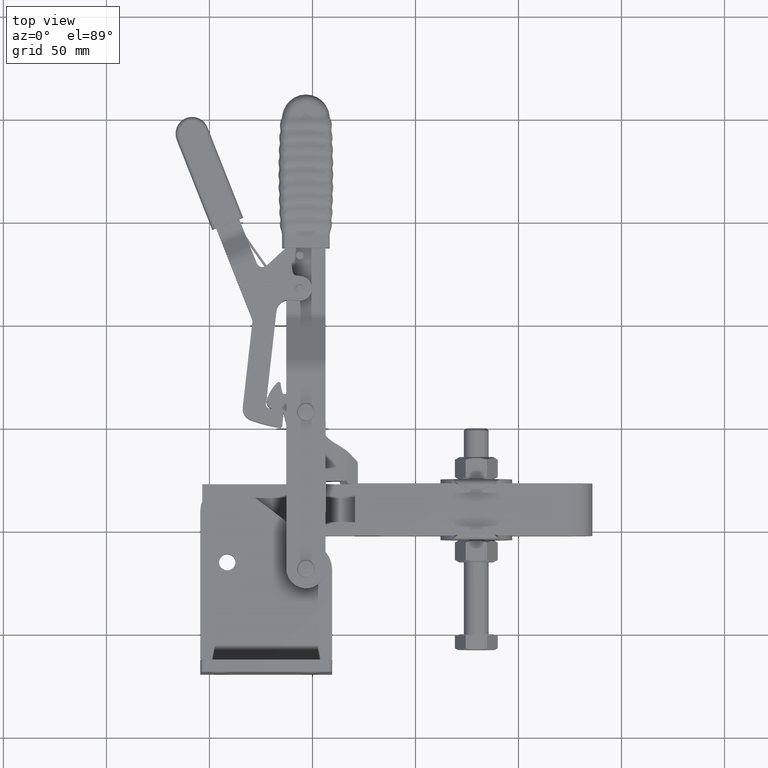
[diagram: clean part render]
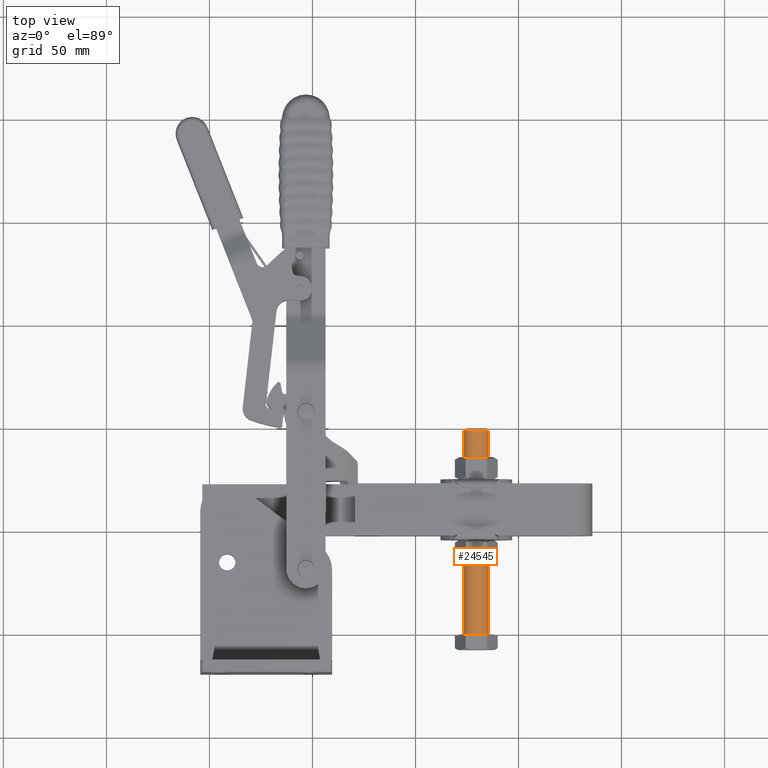
[diagram: same view with one face highlighted and labeled with its STEP entity id]
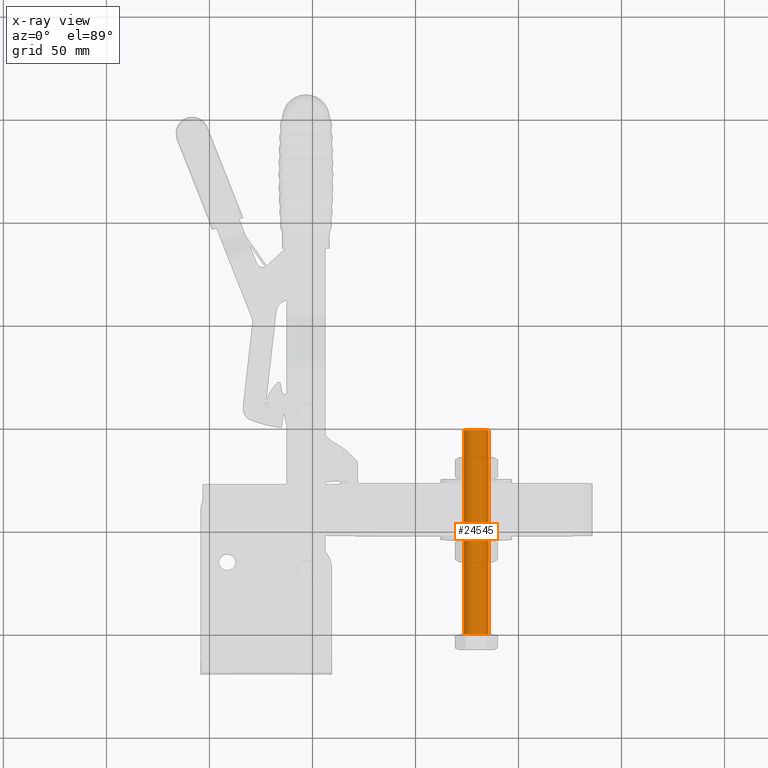
[diagram: x-ray of the same camera — body ghosted, the highlighted face saturated]
A machine part, top view. The second image highlights one B-rep face of the part: STEP entity #24545.
The next image is the same camera in x-ray: the body ghosted, the highlighted face saturated — about 0% of this face is hidden behind the body in this view.
In plain terms, the highlighted cylindrical surface (edge-blend (fillet) strip) has radius 6 mm, axis along (-0, 1, 0).
Its self-contained STEP definition (entity closure, byte-faithful):
#24504=CARTESIAN_POINT('',(52.649999999999991,4.243905E-015,0.0));
#24505=DIRECTION('',(1.0,1.213960E-016,0.0));
#24506=DIRECTION('',(0.0,1.0,0.0));
#24507=AXIS2_PLACEMENT_3D('',#24504,#24505,#24506);
#24508=CYLINDRICAL_SURFACE('',#24507,6.000000000000007);
#24509=CARTESIAN_POINT('',(4.440892E-015,5.999999999999997,0.0));
#24510=VERTEX_POINT('',#24509);
#24511=CARTESIAN_POINT('',(98.926362499999982,6.000000000000018,7.347638E-016));
#24512=VERTEX_POINT('',#24511);
#24513=CARTESIAN_POINT('',(4.440892E-015,5.999999999999997,0.0));
#24514=DIRECTION('',(1.0,0.0,0.0));
#24515=VECTOR('',#24514,98.926362499999982);
#24516=LINE('',#24513,#24515);
#24517=EDGE_CURVE('',#24510,#24512,#24516,.T.);
#24518=ORIENTED_EDGE('',*,*,#24517,.F.);
#24519=CARTESIAN_POINT('',(7.283762E-016,-6.000000000000002,7.347638E-016));
#24520=VERTEX_POINT('',#24519);
#24521=CARTESIAN_POINT('',(0.0,-2.147596E-015,0.0));
#24522=DIRECTION('',(1.0,0.0,0.0));
#24523=DIRECTION('',(0.0,1.0,0.0));
#24524=AXIS2_PLACEMENT_3D('',#24521,#24522,#24523);
#24525=CIRCLE('',#24524,6.0);
#24526=EDGE_CURVE('',#24510,#24520,#24525,.T.);
#24527=ORIENTED_EDGE('',*,*,#24526,.T.);
#24528=CARTESIAN_POINT('',(98.926362499999982,-5.999999999999997,7.347638E-016));
#24529=VERTEX_POINT('',#24528);
#24530=CARTESIAN_POINT('',(98.926362499999982,-5.999999999999997,7.347638E-016));
#24531=DIRECTION('',(-1.0,0.0,0.0));
#24532=VECTOR('',#24531,98.926362499999982);
#24533=LINE('',#24530,#24532);
#24534=EDGE_CURVE('',#24529,#24520,#24533,.T.);
#24535=ORIENTED_EDGE('',*,*,#24534,.F.);
#24536=CARTESIAN_POINT('',(98.926362499999982,9.861672E-015,0.0));
#24537=DIRECTION('',(1.0,0.0,0.0));
#24538=DIRECTION('',(0.0,-1.0,0.0));
#24539=AXIS2_PLACEMENT_3D('',#24536,#24537,#24538);
#24540=CIRCLE('',#24539,6.000000000000007);
#24541=EDGE_CURVE('',#24512,#24529,#24540,.T.);
#24542=ORIENTED_EDGE('',*,*,#24541,.F.);
#24543=EDGE_LOOP('',(#24518,#24527,#24535,#24542));
#24544=FACE_OUTER_BOUND('',#24543,.T.);
#24545=ADVANCED_FACE('',(#24544),#24508,.T.);